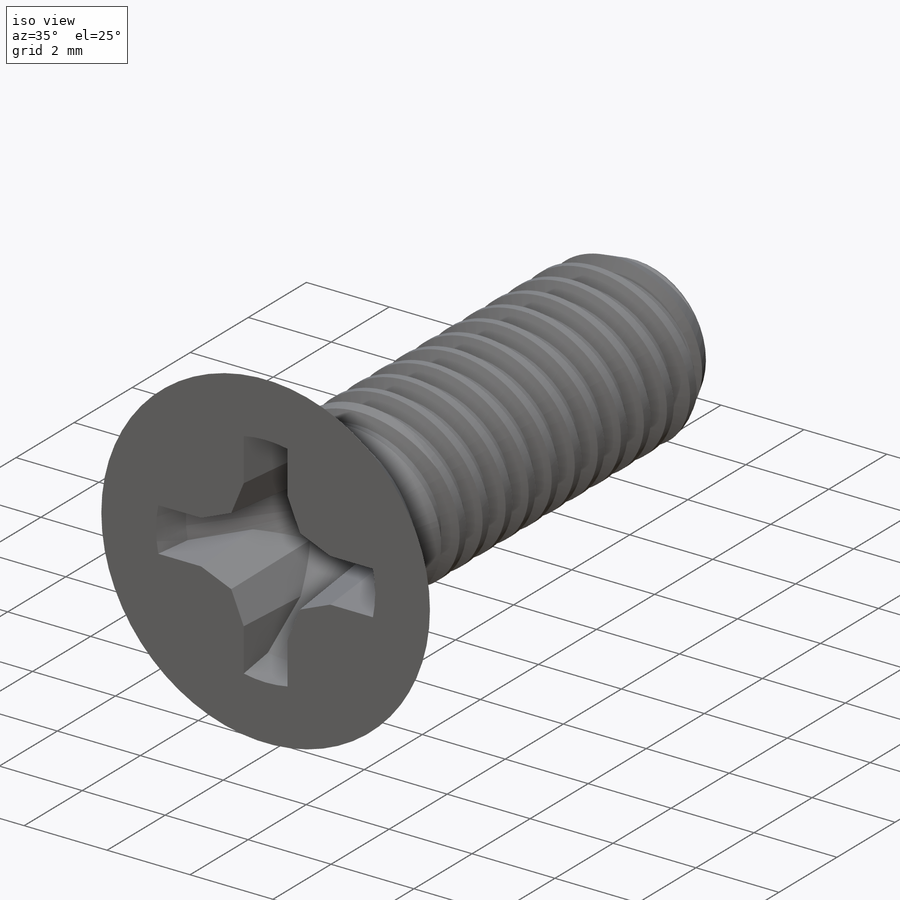
[diagram: iso view]
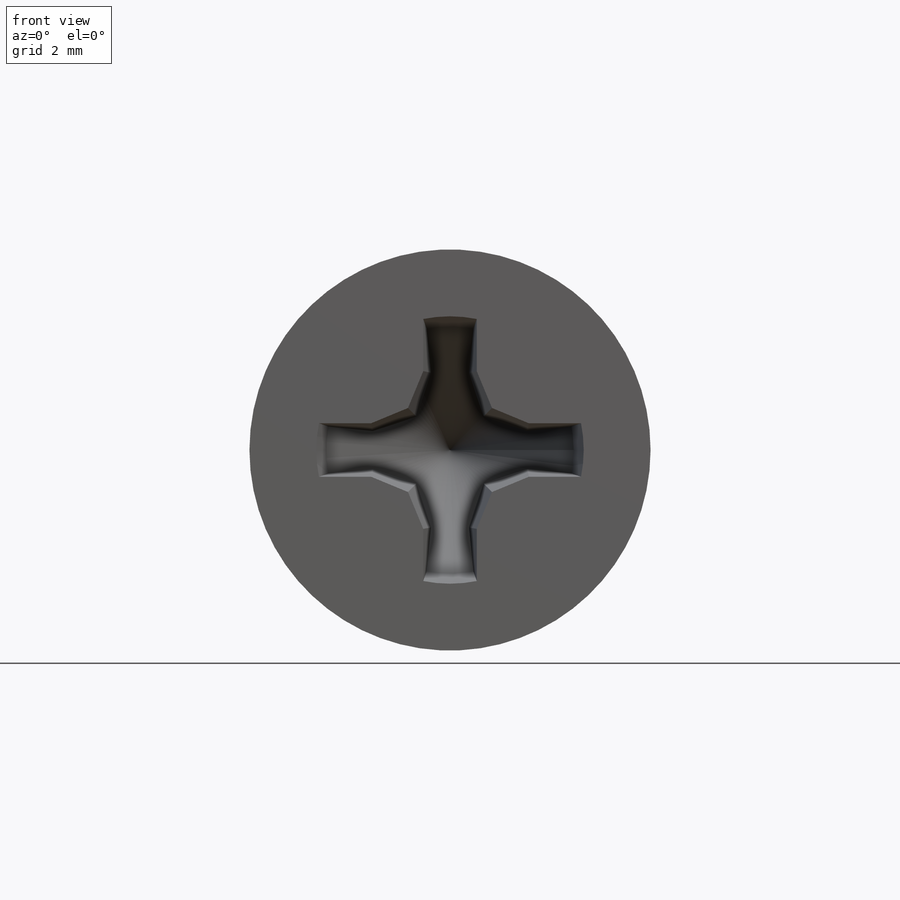
[diagram: front view]
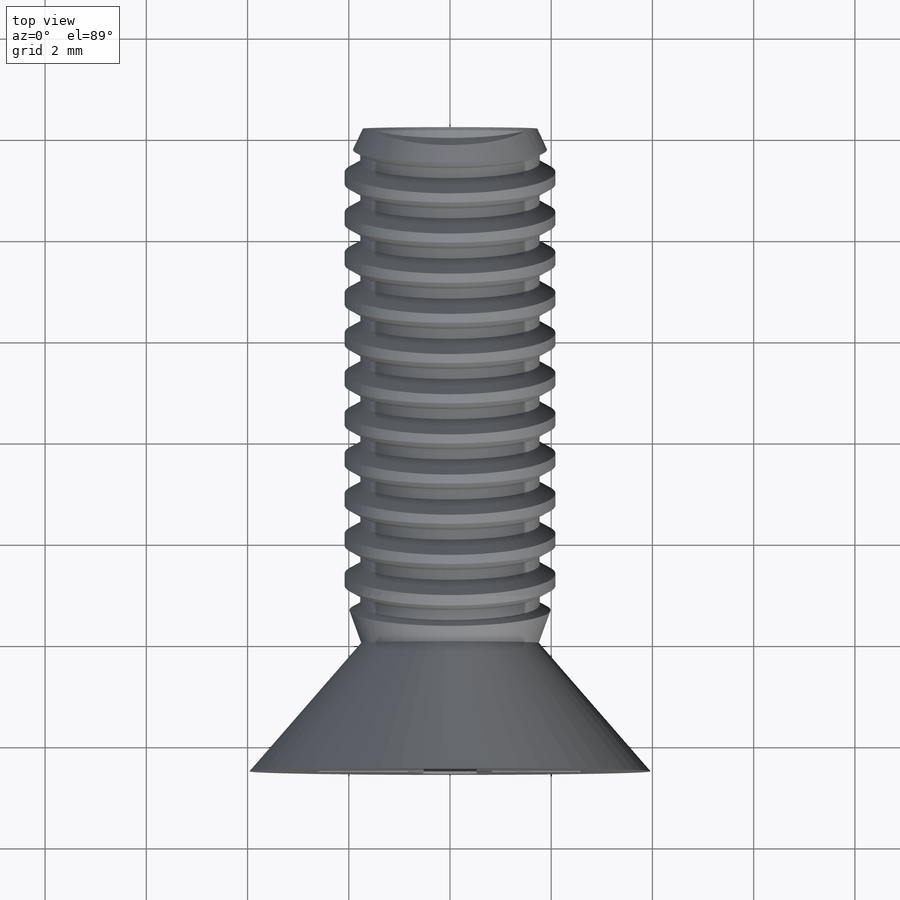
[diagram: top view]
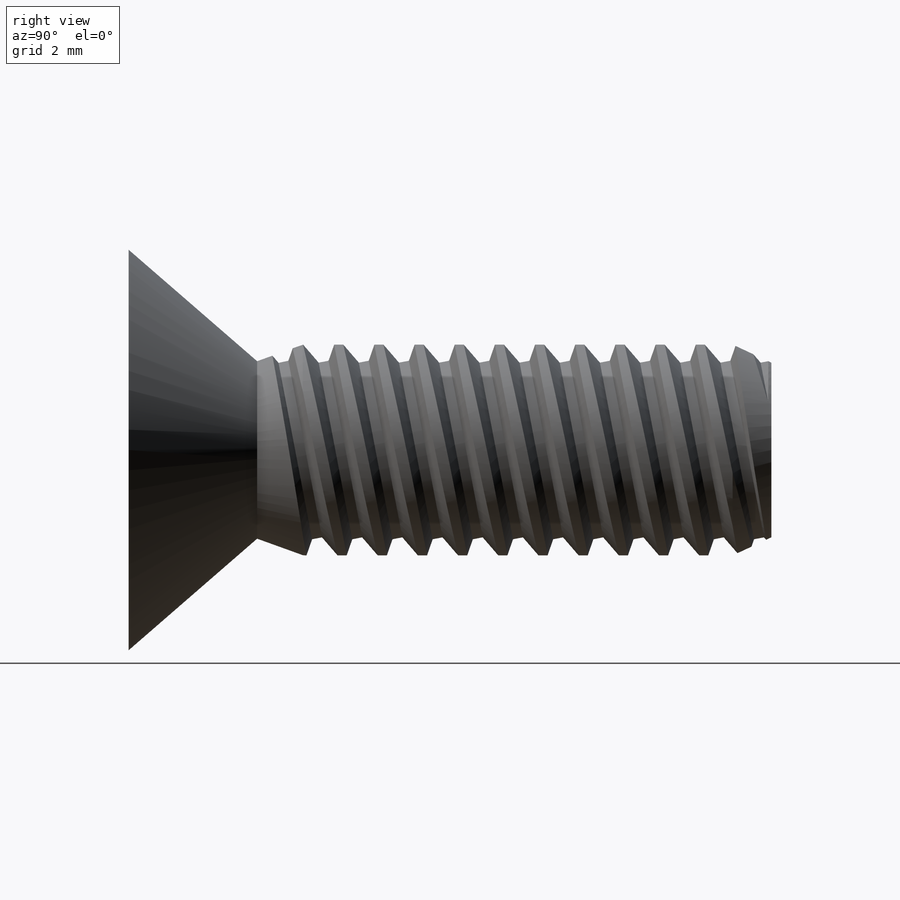
[diagram: right view]
SOLIDWORKS PART (.sldprt)
format: sldprt  version: not decoded by parser v0  size: 740,864 bytes
history: native  units: mm
features: sketch x7, cut_revolve x4, pattern_circular x2, material x1, extrude x1, revolve x1, pattern_linear x1, cut_extrude x1 (+12 scaffold rows collapsed)
feature tree (30):
  scaffold x12  (default folders/planes/origin — collapsed)
  material  "Alloy Steel (SS)"
  sketch  "Sketch1"  dims[Washer OD=8.3312mm Head Dia=7.9248mm Hex=6.35mm]
  extrude  "Extrude3"  Depth=2.54mm Head Ht=2.54mm
  sketch  "Sketch11"  dims[c1.D1=0.254mm c1.D2=~1.642533mm c1.D3=~1.947333mm c2.D2=~1.66218mm c3.D2=5.0deg c3.D1=~3.294374mm c4.D1=82.0deg]
  cut_revolve  "Cut-Revolve3"  Angle=360deg
  sketch  "Sketch4"  dims[c1.Screw Dia=4.1656mm c1.Screw Length=12.7mm c1.Drill Length=~7.14375mm c1.D1=~1.417672mm c2.D1=45.0deg c2.Body Length=10.16mm c2.Screw Length=12.7mm c3.Screw Length=25.4mm c3.D1=90.0deg c4.Screw Length=12.7mm c4.D1=2.54mm]
  revolve  "Revolve1"  Angle=360deg
  sketch  "Sketch5"  dims[c1.Pitch=~0.79375mm c1.D2=~0.099219mm c1.D3=~0.198437mm c1.D4=~0.571547mm c2.D4=60.0deg c2.D1=~0.79375mm]
  cut_revolve  "Cut-Revolve1"  Angle=360deg
  sketch  "Sketch13"  dims[c1.D1=~1.645991mm c2.D1=25.0deg c2.D2=4.1656mm]
  cut_revolve  "Cut-Revolve4"  Angle=360deg
  sketch  "Sketch14"  dims[c1.D1=~1.161081mm c2.D1=20.0deg c3.D1=~1.186193mm c4.D1=20.0deg]
  cut_revolve  "Cut-Revolve5"  Angle=360deg
  pattern_linear  "LPattern2"  Count1=13 Count2=1 Spacing1=0.79375mm Spacing2=50mm
  sketch  "Sketch12"  dims[c1.Cross Recess Dia=4.064mm c1.Phillips Dia=5.2832mm c1.Cross recess Width=0.7112mm c1.Phillips Width=0.7112mm c2.Phillips Width=~1.05664mm c2.D1=1.3208mm]
  cut_extrude  "Cut-Extrude3"  Depth=0.6604mm Phillips Depth=0.6604mm
  pattern_circular  "CirPattern1"  Count=4 Angle=360deg
  pattern_circular  "Draft2"  Angle=5deg  [1 undecoded]
decode coverage: 17 of 17 modeling features carry decoded parameters
note: ~ marks probable driven/reference dimensions
note: 1 parameter value undecoded
note: suppression state not decoded; provenance and decode notes live in map.json
